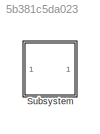
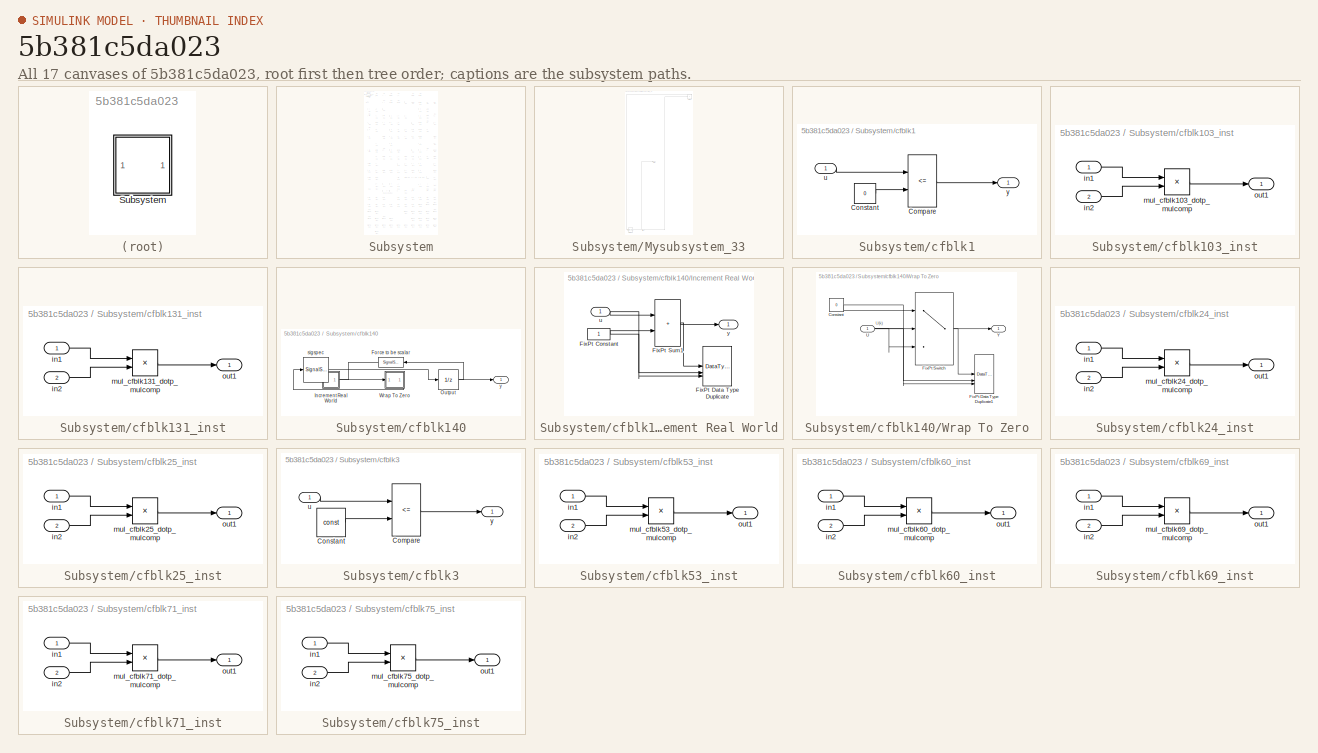
[diagram: thumbnail index - all 17 canvases of the model, root first then tree order]
MODEL slx_5b381c5da023
KIND model
CONFIG AbsTol = auto
CONFIG EnableMultiTasking = off
CONFIG FixedStep = auto
CONFIG MaxStep = auto
CONFIG MinStep = auto
CONFIG RelTol = 1e-3
CONFIG SampleTimeConstraint = Unconstrained
CONFIG SolverName = VariableStepAuto
CONFIG StartTime = 0.0
CONFIG StopTime = 10.0
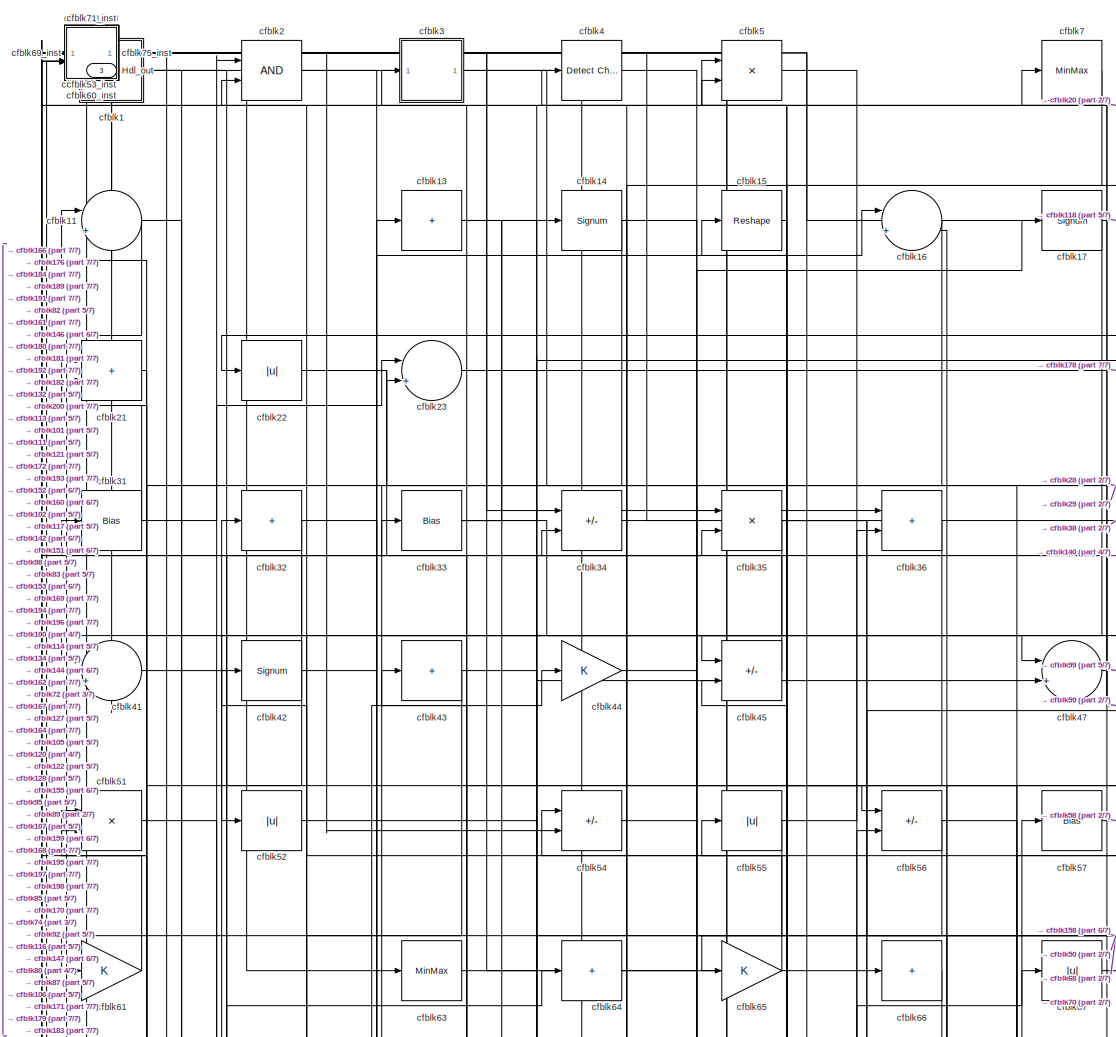
[diagram: Subsystem - part 1/7, top center region]
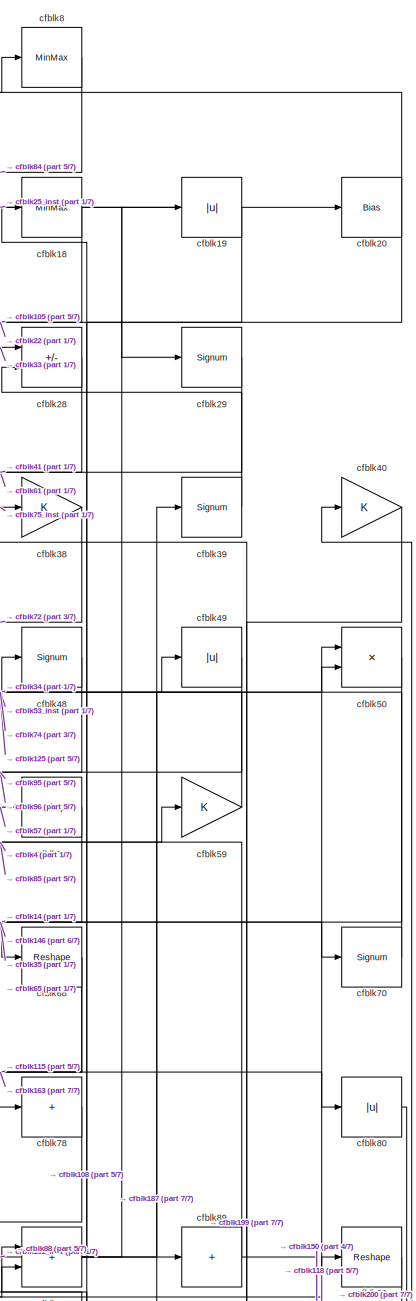
[diagram: Subsystem - part 2/7, top right region]
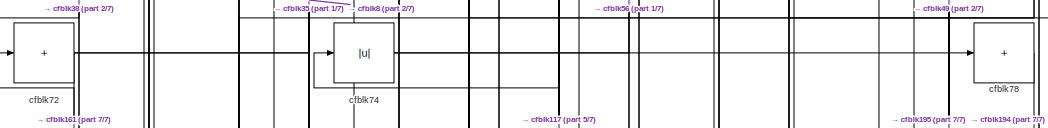
[diagram: Subsystem - part 3/7, central region]
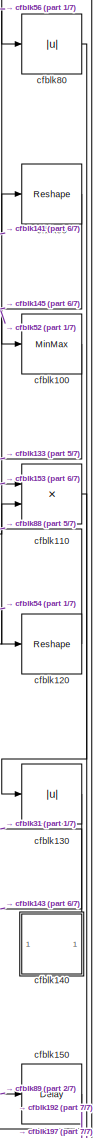
[diagram: Subsystem - part 4/7, middle right region]
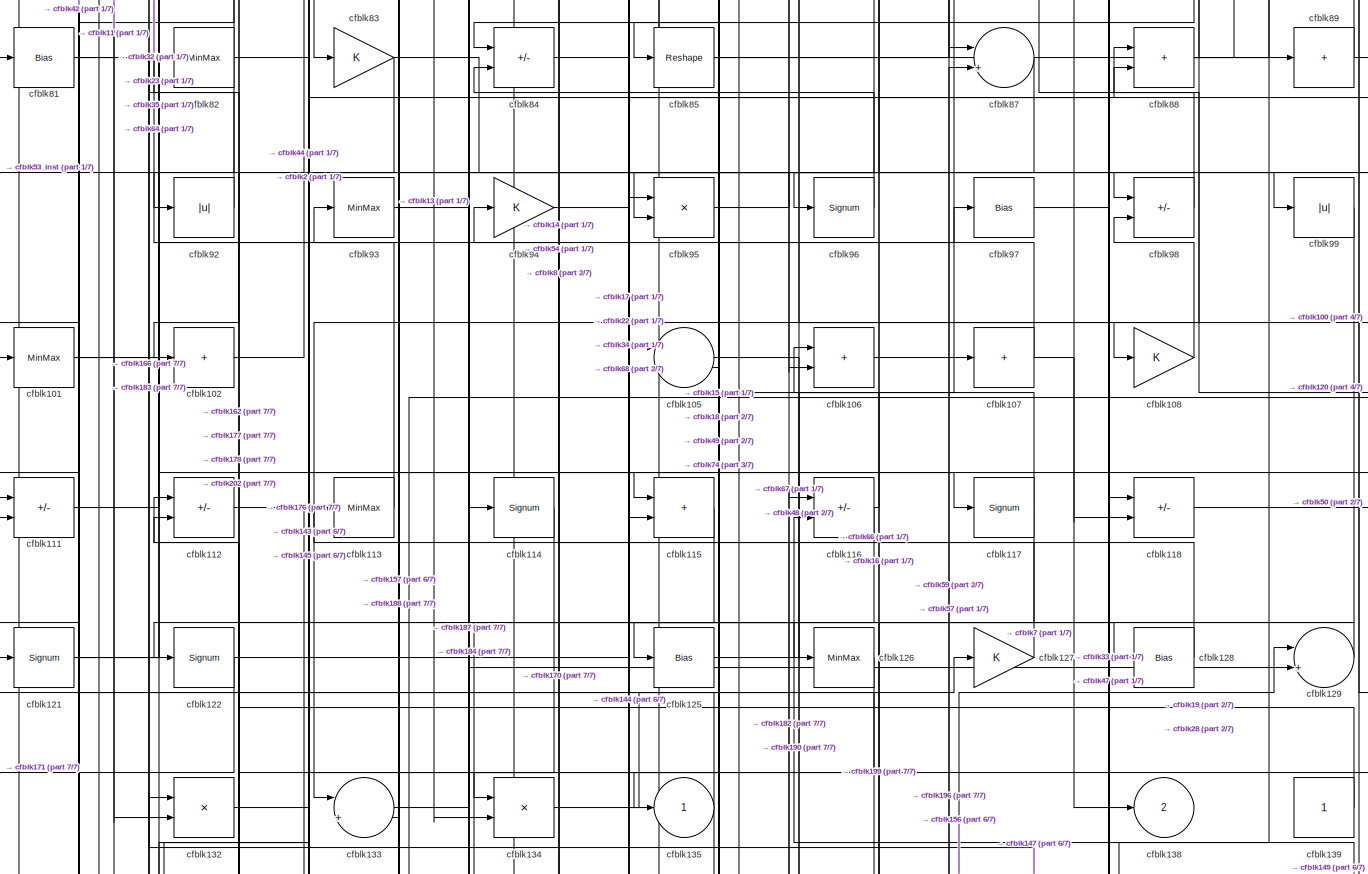
[diagram: Subsystem - part 5/7, full width, middle band]
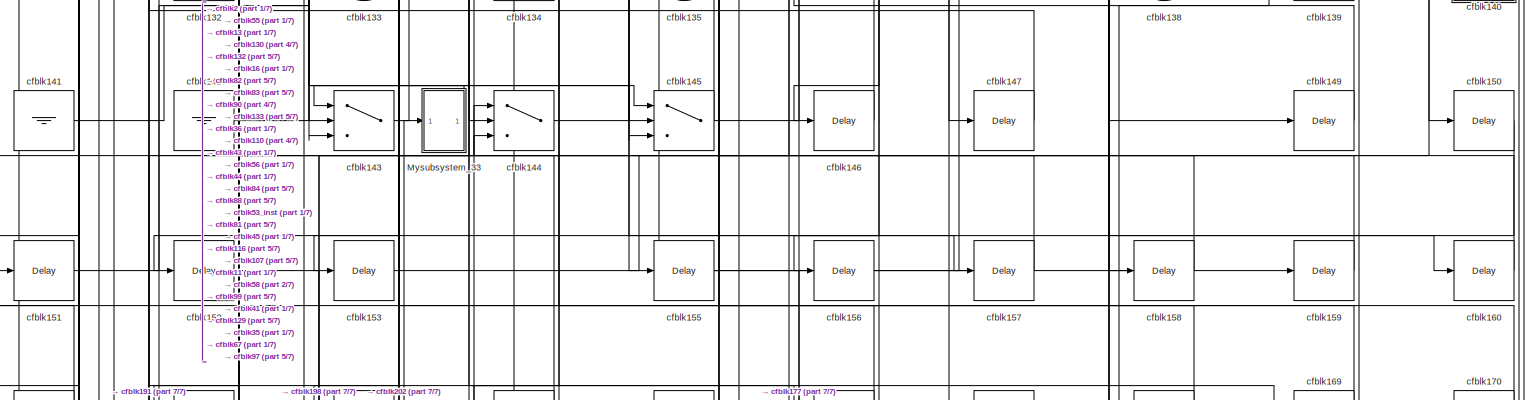
[diagram: Subsystem - part 6/7, full width, bottom band]
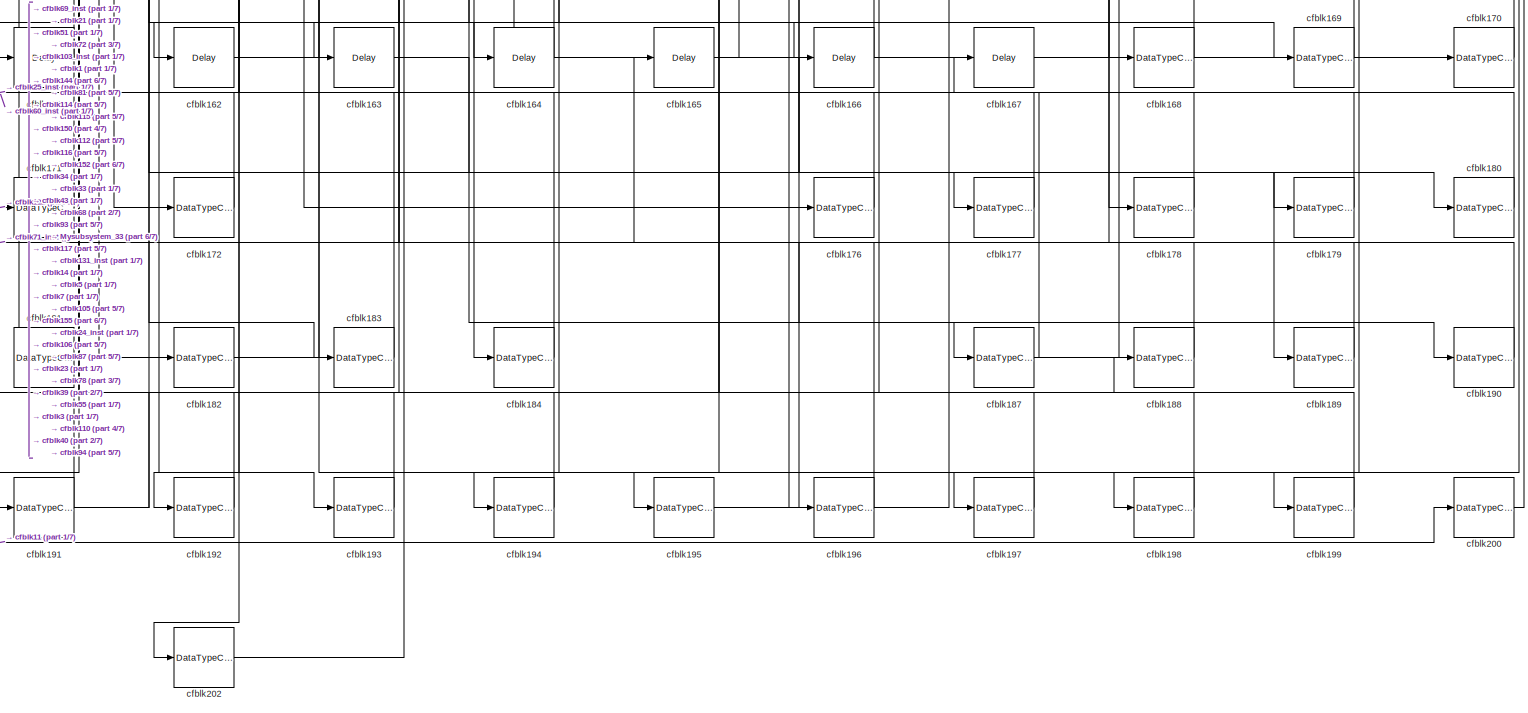
[diagram: Subsystem - part 7/7, full width, bottom band]
BLOCK [SubSystem] Subsystem
BLOCK [Outport] Subsystem/Hdl_out
  OutDataTypeStr = uint8
  Port = 3
BLOCK [SubSystem] Subsystem/Mysubsystem_33
BLOCK [Inport] Subsystem/Mysubsystem_33/In1
  OutDataTypeStr = uint8
  PortDimensions = 1
BLOCK [Outport] Subsystem/Mysubsystem_33/Out1
BLOCK [DataTypeConversion] Subsystem/Mysubsystem_33/cfblk201
  OutDataTypeStr = uint8
  RndMeth = Floor
  SaturateOnIntegerOverflow = off
BLOCK [Sum] Subsystem/Mysubsystem_33/cfblk86
  IconShape = rectangular
  Inputs = +
BLOCK [SubSystem] Subsystem/cfblk1
BLOCK [RelationalOperator] Subsystem/cfblk1/Compare
  Operator = <=
  OutDataTypeStr = fixdt(0, 8)
BLOCK [Constant] Subsystem/cfblk1/Constant
  DisableCoverage = on
  OutDataTypeStr = Inherit: Inherit via back propagation
  PreserveConstantTs = on
  SampleTime = -1
  Value = 0
BLOCK [Inport] Subsystem/cfblk1/u
  OutDataTypeStr = uint8
  SampleTime = 1
BLOCK [Outport] Subsystem/cfblk1/y
  SampleTime = 1
BLOCK [MinMax] Subsystem/cfblk100
  OutDataTypeStr = uint8
BLOCK [MinMax] Subsystem/cfblk101
  OutDataTypeStr = uint8
BLOCK [Sum] Subsystem/cfblk102
  IconShape = rectangular
  Inputs = +
  OutDataTypeStr = uint8
BLOCK [SubSystem] Subsystem/cfblk103_inst
BLOCK [Inport] Subsystem/cfblk103_inst/in1
  OutDataTypeStr = uint8
  SampleTime = 1
BLOCK [Inport] Subsystem/cfblk103_inst/in2
  OutDataTypeStr = uint8
  Port = 2
  SampleTime = 1
BLOCK [Product] Subsystem/cfblk103_inst/mul_cfblk103_dotp_mulcomp
  Inputs = **
  OutDataTypeStr = uint8
  SampleTime = 1
BLOCK [Outport] Subsystem/cfblk103_inst/out1
  OutDataTypeStr = uint8
  SampleTime = 1
BLOCK [Sum] Subsystem/cfblk105
  Inputs = |++
  OutDataTypeStr = uint8
BLOCK [Sum] Subsystem/cfblk106
  IconShape = rectangular
  OutDataTypeStr = uint8
BLOCK [Sum] Subsystem/cfblk107
  IconShape = rectangular
  Inputs = +
  OutDataTypeStr = uint8
BLOCK [Gain] Subsystem/cfblk108
  OutDataTypeStr = uint8
BLOCK [Sum] Subsystem/cfblk11
  Inputs = |++
  OutDataTypeStr = uint8
BLOCK [Product] Subsystem/cfblk110
  Inputs = */
  OutDataTypeStr = uint8
  RndMeth = Zero
  SaturateOnIntegerOverflow = on
BLOCK [Sum] Subsystem/cfblk111
  IconShape = rectangular
  Inputs = +-
  OutDataTypeStr = uint8
BLOCK [Sum] Subsystem/cfblk112
  IconShape = rectangular
  Inputs = +-
  OutDataTypeStr = uint8
BLOCK [MinMax] Subsystem/cfblk113
  OutDataTypeStr = uint8
BLOCK [Signum] Subsystem/cfblk114
BLOCK [Sum] Subsystem/cfblk115
  IconShape = rectangular
  OutDataTypeStr = uint8
BLOCK [Sum] Subsystem/cfblk116
  IconShape = rectangular
  Inputs = +-
  OutDataTypeStr = uint8
BLOCK [Signum] Subsystem/cfblk117
BLOCK [Sum] Subsystem/cfblk118
  IconShape = rectangular
  Inputs = +-
  OutDataTypeStr = uint8
BLOCK [Reshape] Subsystem/cfblk120
BLOCK [Signum] Subsystem/cfblk121
BLOCK [Signum] Subsystem/cfblk122
BLOCK [Bias] Subsystem/cfblk125
  Bias = 0.0
  SaturateOnIntegerOverflow = off
BLOCK [MinMax] Subsystem/cfblk126
  OutDataTypeStr = uint8
BLOCK [Gain] Subsystem/cfblk127
  OutDataTypeStr = uint8
BLOCK [Bias] Subsystem/cfblk128
  Bias = 0.0
  SaturateOnIntegerOverflow = off
BLOCK [Sum] Subsystem/cfblk129
  Inputs = |++
  OutDataTypeStr = uint8
BLOCK [Sum] Subsystem/cfblk13
  IconShape = rectangular
  Inputs = +
  OutDataTypeStr = uint8
BLOCK [Abs] Subsystem/cfblk130
  OutDataTypeStr = uint8
  SaturateOnIntegerOverflow = off
BLOCK [SubSystem] Subsystem/cfblk131_inst
BLOCK [Inport] Subsystem/cfblk131_inst/in1
  OutDataTypeStr = uint8
  SampleTime = 1
BLOCK [Inport] Subsystem/cfblk131_inst/in2
  OutDataTypeStr = uint8
  Port = 2
  SampleTime = 1
BLOCK [Product] Subsystem/cfblk131_inst/mul_cfblk131_dotp_mulcomp
  Inputs = **
  OutDataTypeStr = uint8
  SampleTime = 1
BLOCK [Outport] Subsystem/cfblk131_inst/out1
  OutDataTypeStr = uint8
  SampleTime = 1
BLOCK [Product] Subsystem/cfblk132
  Inputs = */
  OutDataTypeStr = uint8
  RndMeth = Zero
  SaturateOnIntegerOverflow = on
BLOCK [Sum] Subsystem/cfblk133
  Inputs = |++
  OutDataTypeStr = uint8
BLOCK [Product] Subsystem/cfblk134
  Inputs = */
  OutDataTypeStr = uint8
  RndMeth = Zero
  SaturateOnIntegerOverflow = on
BLOCK [Outport] Subsystem/cfblk135
  OutDataTypeStr = uint8
  SampleTime = 1
  VectorParamsAs1DForOutWhenUnconnected = off
BLOCK [Outport] Subsystem/cfblk138
  OutDataTypeStr = uint8
  Port = 2
  SampleTime = 1
  VectorParamsAs1DForOutWhenUnconnected = off
BLOCK [Constant] Subsystem/cfblk139
  OutDataTypeStr = uint8
  SampleTime = -1
BLOCK [Signum] Subsystem/cfblk14
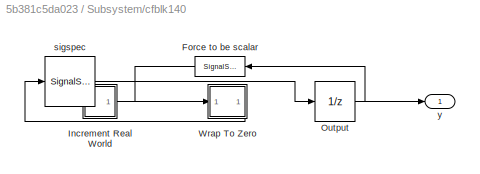
BLOCK [SubSystem] Subsystem/cfblk140
BLOCK [SignalSpecification] Subsystem/cfblk140/Force to be scalar
  Dimensions = 1
  DisableCoverage = on
BLOCK [SubSystem] Subsystem/cfblk140/Increment Real World
BLOCK [Constant] Subsystem/cfblk140/Increment Real World/FixPt Constant
  DisableCoverage = on
  OutDataTypeStr = Inherit: Inherit via back propagation
  SampleTime = -1
BLOCK [DataTypeDuplicate] Subsystem/cfblk140/Increment Real World/FixPt Data Type Duplicate
  DisableCoverage = on
  NumInputPorts = 3
BLOCK [Sum] Subsystem/cfblk140/Increment Real World/FixPt Sum1
  IconShape = rectangular
  InputSameDT = on
  LockScale = on
  OutDataTypeStr = Inherit: Inherit via back propagation
BLOCK [Inport] Subsystem/cfblk140/Increment Real World/u
  OutDataTypeStr = uint8
  SampleTime = 1
BLOCK [Outport] Subsystem/cfblk140/Increment Real World/y
  SampleTime = 1
BLOCK [UnitDelay] Subsystem/cfblk140/Output
  HasFrameUpgradeWarning = on
  InitialCondition = 0.0
  SampleTime = tsamp
BLOCK [SubSystem] Subsystem/cfblk140/Wrap To Zero
BLOCK [Constant] Subsystem/cfblk140/Wrap To Zero/Constant
  DisableCoverage = on
  OutDataTypeStr = Inherit: Inherit via back propagation
  SampleTime = -1
  Value = 0
BLOCK [DataTypeDuplicate] Subsystem/cfblk140/Wrap To Zero/FixPt Data Type Duplicate1
  DisableCoverage = on
  NumInputPorts = 3
BLOCK [Switch] Subsystem/cfblk140/Wrap To Zero/FixPt Switch
  Criteria = u2 > Threshold
  InputSameDT = off
  OutDataTypeStr = Inherit: Inherit via back propagation
  SaturateOnIntegerOverflow = off
  Threshold = Threshold
  ZeroCross = off
BLOCK [Inport] Subsystem/cfblk140/Wrap To Zero/U
  OutDataTypeStr = uint8
  SampleTime = 1
BLOCK [Outport] Subsystem/cfblk140/Wrap To Zero/Y
  SampleTime = 1
BLOCK [SignalSpecification] Subsystem/cfblk140/sigspec
  Dimensions = 1
  OutDataTypeStr = uint8
BLOCK [Outport] Subsystem/cfblk140/y
  SampleTime = 1
BLOCK [Ground] Subsystem/cfblk141
BLOCK [Ground] Subsystem/cfblk142
BLOCK [Switch] Subsystem/cfblk143
  InputSameDT = off
  OutDataTypeStr = uint8
  SaturateOnIntegerOverflow = off
BLOCK [Switch] Subsystem/cfblk144
  InputSameDT = off
  OutDataTypeStr = uint8
  SaturateOnIntegerOverflow = off
BLOCK [Switch] Subsystem/cfblk145
  InputSameDT = off
  OutDataTypeStr = uint8
  SaturateOnIntegerOverflow = off
BLOCK [Delay] Subsystem/cfblk146
  InputPortMap = u0
  SampleTime = 1
BLOCK [Delay] Subsystem/cfblk147
  InputPortMap = u0
  SampleTime = 1
BLOCK [Delay] Subsystem/cfblk149
  InputPortMap = u0
  SampleTime = 1
BLOCK [Reshape] Subsystem/cfblk15
BLOCK [Delay] Subsystem/cfblk150
  InputPortMap = u0
  SampleTime = 1
BLOCK [Delay] Subsystem/cfblk151
  InputPortMap = u0
  SampleTime = 1
BLOCK [Delay] Subsystem/cfblk152
  InputPortMap = u0
  SampleTime = 1
BLOCK [Delay] Subsystem/cfblk153
  InputPortMap = u0
  SampleTime = 1
BLOCK [Delay] Subsystem/cfblk155
  InputPortMap = u0
  SampleTime = 1
BLOCK [Delay] Subsystem/cfblk156
  InputPortMap = u0
  SampleTime = 1
BLOCK [Delay] Subsystem/cfblk157
  InputPortMap = u0
  SampleTime = 1
BLOCK [Delay] Subsystem/cfblk158
  InputPortMap = u0
  SampleTime = 1
BLOCK [Delay] Subsystem/cfblk159
  InputPortMap = u0
  SampleTime = 1
BLOCK [Sum] Subsystem/cfblk16
  Inputs = |++
  OutDataTypeStr = uint8
BLOCK [Delay] Subsystem/cfblk160
  InputPortMap = u0
  SampleTime = 1
BLOCK [Delay] Subsystem/cfblk161
  InputPortMap = u0
  SampleTime = 1
BLOCK [Delay] Subsystem/cfblk162
  InputPortMap = u0
  SampleTime = 1
BLOCK [Delay] Subsystem/cfblk163
  InputPortMap = u0
  SampleTime = 1
BLOCK [Delay] Subsystem/cfblk164
  InputPortMap = u0
  SampleTime = 1
BLOCK [Delay] Subsystem/cfblk165
  InputPortMap = u0
  SampleTime = 1
BLOCK [Delay] Subsystem/cfblk166
  InputPortMap = u0
  SampleTime = 1
BLOCK [Delay] Subsystem/cfblk167
  InputPortMap = u0
  SampleTime = 1
BLOCK [DataTypeConversion] Subsystem/cfblk168
  OutDataTypeStr = uint8
  RndMeth = Floor
  SaturateOnIntegerOverflow = off
BLOCK [DataTypeConversion] Subsystem/cfblk169
  OutDataTypeStr = uint8
  RndMeth = Floor
  SaturateOnIntegerOverflow = off
BLOCK [Signum] Subsystem/cfblk17
BLOCK [DataTypeConversion] Subsystem/cfblk170
  OutDataTypeStr = uint8
  RndMeth = Floor
  SaturateOnIntegerOverflow = off
BLOCK [DataTypeConversion] Subsystem/cfblk171
  OutDataTypeStr = uint8
  RndMeth = Floor
  SaturateOnIntegerOverflow = off
BLOCK [DataTypeConversion] Subsystem/cfblk172
  OutDataTypeStr = uint8
  RndMeth = Floor
  SaturateOnIntegerOverflow = off
BLOCK [DataTypeConversion] Subsystem/cfblk176
  OutDataTypeStr = uint8
  RndMeth = Floor
  SaturateOnIntegerOverflow = off
BLOCK [DataTypeConversion] Subsystem/cfblk177
  OutDataTypeStr = uint8
  RndMeth = Floor
  SaturateOnIntegerOverflow = off
BLOCK [DataTypeConversion] Subsystem/cfblk178
  OutDataTypeStr = uint8
  RndMeth = Floor
  SaturateOnIntegerOverflow = off
BLOCK [DataTypeConversion] Subsystem/cfblk179
  OutDataTypeStr = uint8
  RndMeth = Floor
  SaturateOnIntegerOverflow = off
BLOCK [MinMax] Subsystem/cfblk18
  OutDataTypeStr = uint8
BLOCK [DataTypeConversion] Subsystem/cfblk180
  OutDataTypeStr = uint8
  RndMeth = Floor
  SaturateOnIntegerOverflow = off
BLOCK [DataTypeConversion] Subsystem/cfblk181
  OutDataTypeStr = uint8
  RndMeth = Floor
  SaturateOnIntegerOverflow = off
BLOCK [DataTypeConversion] Subsystem/cfblk182
  OutDataTypeStr = uint8
  RndMeth = Floor
  SaturateOnIntegerOverflow = off
BLOCK [DataTypeConversion] Subsystem/cfblk183
  OutDataTypeStr = uint8
  RndMeth = Floor
  SaturateOnIntegerOverflow = off
BLOCK [DataTypeConversion] Subsystem/cfblk184
  OutDataTypeStr = uint8
  RndMeth = Floor
  SaturateOnIntegerOverflow = off
BLOCK [DataTypeConversion] Subsystem/cfblk187
  OutDataTypeStr = uint8
  RndMeth = Floor
  SaturateOnIntegerOverflow = off
BLOCK [DataTypeConversion] Subsystem/cfblk188
  OutDataTypeStr = uint8
  RndMeth = Floor
  SaturateOnIntegerOverflow = off
BLOCK [DataTypeConversion] Subsystem/cfblk189
  OutDataTypeStr = uint8
  RndMeth = Floor
  SaturateOnIntegerOverflow = off
BLOCK [Abs] Subsystem/cfblk19
  OutDataTypeStr = uint8
  SaturateOnIntegerOverflow = off
BLOCK [DataTypeConversion] Subsystem/cfblk190
  OutDataTypeStr = uint8
  RndMeth = Floor
  SaturateOnIntegerOverflow = off
BLOCK [DataTypeConversion] Subsystem/cfblk191
  OutDataTypeStr = uint8
  RndMeth = Floor
  SaturateOnIntegerOverflow = off
BLOCK [DataTypeConversion] Subsystem/cfblk192
  OutDataTypeStr = uint8
  RndMeth = Floor
  SaturateOnIntegerOverflow = off
BLOCK [DataTypeConversion] Subsystem/cfblk193
  OutDataTypeStr = uint8
  RndMeth = Floor
  SaturateOnIntegerOverflow = off
BLOCK [DataTypeConversion] Subsystem/cfblk194
  OutDataTypeStr = uint8
  RndMeth = Floor
  SaturateOnIntegerOverflow = off
BLOCK [DataTypeConversion] Subsystem/cfblk195
  OutDataTypeStr = uint8
  RndMeth = Floor
  SaturateOnIntegerOverflow = off
BLOCK [DataTypeConversion] Subsystem/cfblk196
  OutDataTypeStr = uint8
  RndMeth = Floor
  SaturateOnIntegerOverflow = off
BLOCK [DataTypeConversion] Subsystem/cfblk197
  OutDataTypeStr = uint8
  RndMeth = Floor
  SaturateOnIntegerOverflow = off
BLOCK [DataTypeConversion] Subsystem/cfblk198
  OutDataTypeStr = uint8
  RndMeth = Floor
  SaturateOnIntegerOverflow = off
BLOCK [DataTypeConversion] Subsystem/cfblk199
  OutDataTypeStr = uint8
  RndMeth = Floor
  SaturateOnIntegerOverflow = off
BLOCK [Logic] Subsystem/cfblk2
  AllPortsSameDT = off
  OutDataTypeStr = boolean
BLOCK [Bias] Subsystem/cfblk20
  Bias = 0.0
  SaturateOnIntegerOverflow = off
BLOCK [DataTypeConversion] Subsystem/cfblk200
  OutDataTypeStr = uint8
  RndMeth = Floor
  SaturateOnIntegerOverflow = off
BLOCK [DataTypeConversion] Subsystem/cfblk202
  OutDataTypeStr = uint8
  RndMeth = Floor
  SaturateOnIntegerOverflow = off
BLOCK [Sum] Subsystem/cfblk21
  IconShape = rectangular
  OutDataTypeStr = uint8
BLOCK [Abs] Subsystem/cfblk22
  OutDataTypeStr = uint8
  SaturateOnIntegerOverflow = off
BLOCK [Sum] Subsystem/cfblk23
  Inputs = |++
  OutDataTypeStr = uint8
BLOCK [SubSystem] Subsystem/cfblk24_inst
BLOCK [Inport] Subsystem/cfblk24_inst/in1
  OutDataTypeStr = uint8
  SampleTime = 1
BLOCK [Inport] Subsystem/cfblk24_inst/in2
  OutDataTypeStr = uint8
  Port = 2
  SampleTime = 1
BLOCK [Product] Subsystem/cfblk24_inst/mul_cfblk24_dotp_mulcomp
  Inputs = **
  OutDataTypeStr = uint8
  SampleTime = 1
BLOCK [Outport] Subsystem/cfblk24_inst/out1
  OutDataTypeStr = uint8
  SampleTime = 1
BLOCK [SubSystem] Subsystem/cfblk25_inst
BLOCK [Inport] Subsystem/cfblk25_inst/in1
  OutDataTypeStr = uint8
  SampleTime = 1
BLOCK [Inport] Subsystem/cfblk25_inst/in2
  OutDataTypeStr = uint8
  Port = 2
  SampleTime = 1
BLOCK [Product] Subsystem/cfblk25_inst/mul_cfblk25_dotp_mulcomp
  Inputs = **
  OutDataTypeStr = uint8
  SampleTime = 1
BLOCK [Outport] Subsystem/cfblk25_inst/out1
  OutDataTypeStr = uint8
  SampleTime = 1
BLOCK [Sum] Subsystem/cfblk28
  IconShape = rectangular
  Inputs = +-
  OutDataTypeStr = uint8
BLOCK [Signum] Subsystem/cfblk29
BLOCK [SubSystem] Subsystem/cfblk3
BLOCK [RelationalOperator] Subsystem/cfblk3/Compare
  Operator = <=
  OutDataTypeStr = fixdt(0, 8)
BLOCK [Constant] Subsystem/cfblk3/Constant
  DisableCoverage = on
  OutDataTypeStr = Inherit: Inherit via back propagation
  SampleTime = -1
  Value = const
BLOCK [Inport] Subsystem/cfblk3/u
  OutDataTypeStr = uint8
  SampleTime = 1
BLOCK [Outport] Subsystem/cfblk3/y
  SampleTime = 1
BLOCK [Bias] Subsystem/cfblk31
  Bias = 0.0
  SaturateOnIntegerOverflow = off
BLOCK [Sum] Subsystem/cfblk32
  IconShape = rectangular
  Inputs = +
  OutDataTypeStr = uint8
BLOCK [Bias] Subsystem/cfblk33
  Bias = 0.0
  SaturateOnIntegerOverflow = off
BLOCK [Sum] Subsystem/cfblk34
  IconShape = rectangular
  Inputs = +-
  OutDataTypeStr = uint8
BLOCK [Product] Subsystem/cfblk35
  Inputs = */
  OutDataTypeStr = uint8
  RndMeth = Zero
  SaturateOnIntegerOverflow = on
BLOCK [Sum] Subsystem/cfblk36
  IconShape = rectangular
  OutDataTypeStr = uint8
BLOCK [Gain] Subsystem/cfblk38
  OutDataTypeStr = uint8
BLOCK [Signum] Subsystem/cfblk39
BLOCK [Reference] Subsystem/cfblk4  REF=simulink/Logic and Bit
Operations/Detect
Change
  LibrarySourceBlock = hdlsllib/Logic and Bit\nOperations/Detect\nChange
  SourceBlock = simulink/Logic and Bit\nOperations/Detect\nChange
  SourceType = Detect Change
BLOCK [Gain] Subsystem/cfblk40
  OutDataTypeStr = uint8
BLOCK [Sum] Subsystem/cfblk41
  Inputs = |++
  OutDataTypeStr = uint8
BLOCK [Signum] Subsystem/cfblk42
BLOCK [Sum] Subsystem/cfblk43
  IconShape = rectangular
  Inputs = +
  OutDataTypeStr = uint8
BLOCK [Gain] Subsystem/cfblk44
  OutDataTypeStr = uint8
BLOCK [Sum] Subsystem/cfblk45
  IconShape = rectangular
  Inputs = +-
  OutDataTypeStr = uint8
BLOCK [Sum] Subsystem/cfblk47
  Inputs = |++
  OutDataTypeStr = uint8
BLOCK [Signum] Subsystem/cfblk48
BLOCK [Abs] Subsystem/cfblk49
  OutDataTypeStr = uint8
  SaturateOnIntegerOverflow = off
BLOCK [Product] Subsystem/cfblk5
  Inputs = */
  OutDataTypeStr = uint8
  RndMeth = Zero
  SaturateOnIntegerOverflow = on
BLOCK [Product] Subsystem/cfblk50
  Inputs = */
  OutDataTypeStr = uint8
  RndMeth = Zero
  SaturateOnIntegerOverflow = on
BLOCK [Product] Subsystem/cfblk51
  Inputs = */
  OutDataTypeStr = uint8
  RndMeth = Zero
  SaturateOnIntegerOverflow = on
BLOCK [Abs] Subsystem/cfblk52
  OutDataTypeStr = uint8
  SaturateOnIntegerOverflow = off
BLOCK [SubSystem] Subsystem/cfblk53_inst
BLOCK [Inport] Subsystem/cfblk53_inst/in1
  OutDataTypeStr = uint8
  SampleTime = 1
BLOCK [Inport] Subsystem/cfblk53_inst/in2
  OutDataTypeStr = uint8
  Port = 2
  SampleTime = 1
BLOCK [Product] Subsystem/cfblk53_inst/mul_cfblk53_dotp_mulcomp
  Inputs = **
  OutDataTypeStr = uint8
  SampleTime = 1
BLOCK [Outport] Subsystem/cfblk53_inst/out1
  OutDataTypeStr = uint8
  SampleTime = 1
BLOCK [Sum] Subsystem/cfblk54
  IconShape = rectangular
  Inputs = +-
  OutDataTypeStr = uint8
BLOCK [Abs] Subsystem/cfblk55
  OutDataTypeStr = uint8
  SaturateOnIntegerOverflow = off
BLOCK [Sum] Subsystem/cfblk56
  IconShape = rectangular
  Inputs = +-
  OutDataTypeStr = uint8
BLOCK [Bias] Subsystem/cfblk57
  Bias = 0.0
  SaturateOnIntegerOverflow = off
BLOCK [Reshape] Subsystem/cfblk58
BLOCK [Gain] Subsystem/cfblk59
  OutDataTypeStr = uint8
BLOCK [SubSystem] Subsystem/cfblk60_inst
BLOCK [Inport] Subsystem/cfblk60_inst/in1
  OutDataTypeStr = uint8
  SampleTime = 1
BLOCK [Inport] Subsystem/cfblk60_inst/in2
  OutDataTypeStr = uint8
  Port = 2
  SampleTime = 1
BLOCK [Product] Subsystem/cfblk60_inst/mul_cfblk60_dotp_mulcomp
  Inputs = **
  OutDataTypeStr = uint8
  SampleTime = 1
BLOCK [Outport] Subsystem/cfblk60_inst/out1
  OutDataTypeStr = uint8
  SampleTime = 1
BLOCK [Gain] Subsystem/cfblk61
  OutDataTypeStr = uint8
BLOCK [MinMax] Subsystem/cfblk63
  OutDataTypeStr = uint8
BLOCK [Sum] Subsystem/cfblk64
  IconShape = rectangular
  Inputs = +
  OutDataTypeStr = uint8
BLOCK [Gain] Subsystem/cfblk65
  OutDataTypeStr = uint8
BLOCK [Sum] Subsystem/cfblk66
  IconShape = rectangular
  Inputs = +
  OutDataTypeStr = uint8
BLOCK [Abs] Subsystem/cfblk67
  OutDataTypeStr = uint8
  SaturateOnIntegerOverflow = off
BLOCK [Reshape] Subsystem/cfblk68
BLOCK [SubSystem] Subsystem/cfblk69_inst
BLOCK [Inport] Subsystem/cfblk69_inst/in1
  OutDataTypeStr = uint8
  SampleTime = 1
BLOCK [Inport] Subsystem/cfblk69_inst/in2
  OutDataTypeStr = uint8
  Port = 2
  SampleTime = 1
BLOCK [Product] Subsystem/cfblk69_inst/mul_cfblk69_dotp_mulcomp
  Inputs = **
  OutDataTypeStr = uint8
  SampleTime = 1
BLOCK [Outport] Subsystem/cfblk69_inst/out1
  OutDataTypeStr = uint8
  SampleTime = 1
BLOCK [MinMax] Subsystem/cfblk7
  OutDataTypeStr = uint8
BLOCK [Signum] Subsystem/cfblk70
BLOCK [SubSystem] Subsystem/cfblk71_inst
BLOCK [Inport] Subsystem/cfblk71_inst/in1
  OutDataTypeStr = uint8
  SampleTime = 1
BLOCK [Inport] Subsystem/cfblk71_inst/in2
  OutDataTypeStr = uint8
  Port = 2
  SampleTime = 1
BLOCK [Product] Subsystem/cfblk71_inst/mul_cfblk71_dotp_mulcomp
  Inputs = **
  OutDataTypeStr = uint8
  SampleTime = 1
BLOCK [Outport] Subsystem/cfblk71_inst/out1
  OutDataTypeStr = uint8
  SampleTime = 1
BLOCK [Sum] Subsystem/cfblk72
  IconShape = rectangular
  Inputs = +
  OutDataTypeStr = uint8
BLOCK [Abs] Subsystem/cfblk74
  OutDataTypeStr = uint8
  SaturateOnIntegerOverflow = off
BLOCK [SubSystem] Subsystem/cfblk75_inst
BLOCK [Inport] Subsystem/cfblk75_inst/in1
  OutDataTypeStr = uint8
  SampleTime = 1
BLOCK [Inport] Subsystem/cfblk75_inst/in2
  OutDataTypeStr = uint8
  Port = 2
  SampleTime = 1
BLOCK [Product] Subsystem/cfblk75_inst/mul_cfblk75_dotp_mulcomp
  Inputs = **
  OutDataTypeStr = uint8
  SampleTime = 1
BLOCK [Outport] Subsystem/cfblk75_inst/out1
  OutDataTypeStr = uint8
  SampleTime = 1
BLOCK [Sum] Subsystem/cfblk78
  IconShape = rectangular
  Inputs = +
  OutDataTypeStr = uint8
BLOCK [MinMax] Subsystem/cfblk8
  OutDataTypeStr = uint8
BLOCK [Abs] Subsystem/cfblk80
  OutDataTypeStr = uint8
  SaturateOnIntegerOverflow = off
BLOCK [Bias] Subsystem/cfblk81
  Bias = 0.0
  SaturateOnIntegerOverflow = off
BLOCK [MinMax] Subsystem/cfblk82
  OutDataTypeStr = uint8
BLOCK [Gain] Subsystem/cfblk83
  OutDataTypeStr = uint8
BLOCK [Sum] Subsystem/cfblk84
  IconShape = rectangular
  Inputs = +-
  OutDataTypeStr = uint8
BLOCK [Reshape] Subsystem/cfblk85
BLOCK [Sum] Subsystem/cfblk87
  Inputs = |++
  OutDataTypeStr = uint8
BLOCK [Sum] Subsystem/cfblk88
  IconShape = rectangular
  OutDataTypeStr = uint8
BLOCK [Sum] Subsystem/cfblk89
  IconShape = rectangular
  Inputs = +
  OutDataTypeStr = uint8
BLOCK [Reshape] Subsystem/cfblk90
BLOCK [Abs] Subsystem/cfblk92
  OutDataTypeStr = uint8
  SaturateOnIntegerOverflow = off
BLOCK [MinMax] Subsystem/cfblk93
  OutDataTypeStr = uint8
BLOCK [Gain] Subsystem/cfblk94
  OutDataTypeStr = uint8
BLOCK [Product] Subsystem/cfblk95
  Inputs = */
  OutDataTypeStr = uint8
  RndMeth = Zero
  SaturateOnIntegerOverflow = on
BLOCK [Signum] Subsystem/cfblk96
BLOCK [Bias] Subsystem/cfblk97
  Bias = 0.0
  SaturateOnIntegerOverflow = off
BLOCK [Sum] Subsystem/cfblk98
  IconShape = rectangular
  Inputs = +-
  OutDataTypeStr = uint8
BLOCK [Abs] Subsystem/cfblk99
  OutDataTypeStr = uint8
  SaturateOnIntegerOverflow = off
ANNOTATION Subsystem/cfblk140/Wrap To Zero: U(k)
LINE Subsystem/Mysubsystem_33/In1:1 -> Subsystem/Mysubsystem_33/cfblk86:1
LINE Subsystem/Mysubsystem_33/cfblk201:1 -> Subsystem/Mysubsystem_33/Out1:1
LINE Subsystem/Mysubsystem_33/cfblk86:1 -> Subsystem/Mysubsystem_33/cfblk201:1
LINE Subsystem/Mysubsystem_33:1 -> Subsystem/cfblk143:1
LINE Subsystem/cfblk100:1 -> Subsystem/cfblk133:1
NET Subsystem/cfblk101:1 -> Subsystem/cfblk115:1, Subsystem/cfblk35:2
LINE Subsystem/cfblk102:1 -> Subsystem/cfblk44:1
LINE Subsystem/cfblk103_inst/in1:1 -> Subsystem/cfblk103_inst/mul_cfblk103_dotp_mulcomp:1
LINE Subsystem/cfblk103_inst/in2:1 -> Subsystem/cfblk103_inst/mul_cfblk103_dotp_mulcomp:2
LINE Subsystem/cfblk103_inst/mul_cfblk103_dotp_mulcomp:1 -> Subsystem/cfblk103_inst/out1:1
LINE Subsystem/cfblk103_inst:1 -> Subsystem/cfblk182:1
LINE Subsystem/cfblk105:1 -> Subsystem/cfblk190:1
LINE Subsystem/cfblk106:1 -> Subsystem/cfblk57:1
NET Subsystem/cfblk107:1 -> Subsystem/cfblk138:1, Subsystem/cfblk15:1
LINE Subsystem/cfblk108:1 -> Subsystem/cfblk98:2
LINE Subsystem/cfblk110:1 -> Subsystem/cfblk197:1
LINE Subsystem/cfblk111:1 -> Subsystem/cfblk64:1
LINE Subsystem/cfblk112:1 -> Subsystem/cfblk176:1
LINE Subsystem/cfblk113:1 -> Subsystem/cfblk32:1
LINE Subsystem/cfblk114:1 -> Subsystem/cfblk202:1
LINE Subsystem/cfblk115:1 -> Subsystem/cfblk162:1
NET Subsystem/cfblk116:1 -> Subsystem/cfblk125:1, Subsystem/cfblk16:2
NET Subsystem/cfblk117:1 -> Subsystem/cfblk184:1, Subsystem/cfblk74:1
LINE Subsystem/cfblk118:1 -> Subsystem/cfblk50:1
NET Subsystem/cfblk11:1 -> Subsystem/cfblk132:2, Subsystem/cfblk200:1
LINE Subsystem/cfblk120:1 -> Subsystem/cfblk88:1
NET Subsystem/cfblk121:1 -> Subsystem/cfblk23:2, Subsystem/cfblk97:1
NET Subsystem/cfblk122:1 -> Subsystem/cfblk171:1, Subsystem/cfblk17:1
LINE Subsystem/cfblk125:1 -> Subsystem/cfblk48:1
LINE Subsystem/cfblk126:1 -> Subsystem/cfblk134:1
LINE Subsystem/cfblk127:1 -> Subsystem/cfblk54:1
LINE Subsystem/cfblk128:1 -> Subsystem/cfblk113:1
LINE Subsystem/cfblk129:1 -> Subsystem/cfblk122:1
LINE Subsystem/cfblk130:1 -> Subsystem/cfblk143:2
LINE Subsystem/cfblk131_inst/in1:1 -> Subsystem/cfblk131_inst/mul_cfblk131_dotp_mulcomp:1
LINE Subsystem/cfblk131_inst/in2:1 -> Subsystem/cfblk131_inst/mul_cfblk131_dotp_mulcomp:2
LINE Subsystem/cfblk131_inst/mul_cfblk131_dotp_mulcomp:1 -> Subsystem/cfblk131_inst/out1:1
LINE Subsystem/cfblk131_inst:1 -> Subsystem/cfblk89:1
LINE Subsystem/cfblk132:1 -> Subsystem/cfblk145:1
LINE Subsystem/cfblk133:1 -> Subsystem/cfblk129:2
LINE Subsystem/cfblk134:1 -> Subsystem/cfblk127:1
LINE Subsystem/cfblk139:1 -> Subsystem/cfblk82:1
NET Subsystem/cfblk13:1 -> Subsystem/cfblk114:1, Subsystem/cfblk134:2
LINE Subsystem/cfblk140:1 -> Subsystem/cfblk31:1
LINE Subsystem/cfblk141:1 -> Subsystem/cfblk90:1
LINE Subsystem/cfblk142:1 -> Subsystem/cfblk13:1
LINE Subsystem/cfblk143:1 -> Subsystem/cfblk110:2
LINE Subsystem/cfblk144:1 -> Subsystem/cfblk88:2
NET Subsystem/cfblk145:1 -> Subsystem/cfblk107:1, Subsystem/cfblk81:1
LINE Subsystem/cfblk146:1 -> Subsystem/cfblk11:1
LINE Subsystem/cfblk147:1 -> Subsystem/cfblk132:1
LINE Subsystem/cfblk149:1 -> Subsystem/cfblk116:2
NET Subsystem/cfblk14:1 -> Subsystem/cfblk164:1, Subsystem/cfblk68:1, Subsystem/cfblk83:1
LINE Subsystem/cfblk150:1 -> Subsystem/cfblk192:1
LINE Subsystem/cfblk151:1 -> Subsystem/cfblk16:1
LINE Subsystem/cfblk152:1 -> Subsystem/cfblk198:1
LINE Subsystem/cfblk153:1 -> Subsystem/cfblk110:1
LINE Subsystem/cfblk155:1 -> Subsystem/cfblk177:1
LINE Subsystem/cfblk156:1 -> Subsystem/cfblk129:1
LINE Subsystem/cfblk157:1 -> Subsystem/cfblk133:2
LINE Subsystem/cfblk158:1 -> Subsystem/cfblk144:1
LINE Subsystem/cfblk159:1 -> Subsystem/cfblk45:2
LINE Subsystem/cfblk15:1 -> Subsystem/cfblk45:1
LINE Subsystem/cfblk160:1 -> Subsystem/cfblk2:2
LINE Subsystem/cfblk161:1 -> Subsystem/cfblk69_inst:2
LINE Subsystem/cfblk162:1 -> Subsystem/cfblk34:1
LINE Subsystem/cfblk163:1 -> Subsystem/cfblk180:1
LINE Subsystem/cfblk164:1 -> Subsystem/cfblk131_inst:2
LINE Subsystem/cfblk165:1 -> Subsystem/cfblk189:1
LINE Subsystem/cfblk166:1 -> Subsystem/cfblk24_inst:2
LINE Subsystem/cfblk167:1 -> Subsystem/cfblk1:1
LINE Subsystem/cfblk168:1 -> Subsystem/cfblk55:1
LINE Subsystem/cfblk169:1 -> Subsystem/cfblk3:1
LINE Subsystem/cfblk16:1 -> Subsystem/cfblk85:1
LINE Subsystem/cfblk170:1 -> Subsystem/cfblk94:1
LINE Subsystem/cfblk171:1 -> Subsystem/cfblk60_inst:1
LINE Subsystem/cfblk172:1 -> Subsystem/cfblk60_inst:2
LINE Subsystem/cfblk176:1 -> Subsystem/cfblk25_inst:2
LINE Subsystem/cfblk177:1 -> Subsystem/cfblk112:1
LINE Subsystem/cfblk178:1 -> Subsystem/cfblk112:2
LINE Subsystem/cfblk179:1 -> Subsystem/cfblk24_inst:1
NET Subsystem/cfblk17:1 -> Subsystem/cfblk118:2, Subsystem/cfblk121:1
LINE Subsystem/cfblk180:1 -> Subsystem/cfblk51:1
LINE Subsystem/cfblk181:1 -> Subsystem/cfblk51:2
LINE Subsystem/cfblk182:1 -> Subsystem/cfblk116:1
LINE Subsystem/cfblk183:1 -> Subsystem/cfblk103_inst:1
LINE Subsystem/cfblk184:1 -> Subsystem/cfblk103_inst:2
NET Subsystem/cfblk187:1 -> Subsystem/cfblk167:1, Subsystem/cfblk39:1
LINE Subsystem/cfblk188:1 -> Subsystem/cfblk93:1
LINE Subsystem/cfblk189:1 -> Subsystem/cfblk71_inst:1
NET Subsystem/cfblk18:1 -> Subsystem/cfblk105:2, Subsystem/cfblk29:1
LINE Subsystem/cfblk190:1 -> Subsystem/cfblk165:1
NET Subsystem/cfblk191:1 -> Subsystem/cfblk144:3, Subsystem/cfblk188:1, Subsystem/cfblk71_inst:2
LINE Subsystem/cfblk192:1 -> Subsystem/cfblk21:1
LINE Subsystem/cfblk193:1 -> Subsystem/cfblk21:2
LINE Subsystem/cfblk194:1 -> Subsystem/cfblk33:1
LINE Subsystem/cfblk195:1 -> Subsystem/cfblk78:1
NET Subsystem/cfblk196:1 -> Subsystem/cfblk43:1, Subsystem/cfblk87:2
LINE Subsystem/cfblk197:1 -> Subsystem/cfblk5:1
LINE Subsystem/cfblk198:1 -> Subsystem/cfblk5:2
LINE Subsystem/cfblk199:1 -> Subsystem/cfblk106:1
LINE Subsystem/cfblk19:1 -> Subsystem/cfblk108:1
NET Subsystem/cfblk1:1 -> Subsystem/cfblk172:1, Subsystem/cfblk193:1
LINE Subsystem/cfblk200:1 -> Subsystem/cfblk40:1
LINE Subsystem/cfblk202:1 -> Subsystem/Mysubsystem_33:1
NET Subsystem/cfblk20:1 -> Subsystem/cfblk131_inst:1, Subsystem/cfblk22:1
LINE Subsystem/cfblk21:1 -> Subsystem/cfblk191:1
NET Subsystem/cfblk22:1 -> Subsystem/cfblk105:1, Subsystem/cfblk87:1
LINE Subsystem/cfblk23:1 -> Subsystem/cfblk178:1
LINE Subsystem/cfblk24_inst/in1:1 -> Subsystem/cfblk24_inst/mul_cfblk24_dotp_mulcomp:1
LINE Subsystem/cfblk24_inst/in2:1 -> Subsystem/cfblk24_inst/mul_cfblk24_dotp_mulcomp:2
LINE Subsystem/cfblk24_inst/mul_cfblk24_dotp_mulcomp:1 -> Subsystem/cfblk24_inst/out1:1
NET Subsystem/cfblk24_inst:1 -> Subsystem/cfblk11:2, Subsystem/cfblk63:1
LINE Subsystem/cfblk25_inst/in1:1 -> Subsystem/cfblk25_inst/mul_cfblk25_dotp_mulcomp:1
LINE Subsystem/cfblk25_inst/in2:1 -> Subsystem/cfblk25_inst/mul_cfblk25_dotp_mulcomp:2
LINE Subsystem/cfblk25_inst/mul_cfblk25_dotp_mulcomp:1 -> Subsystem/cfblk25_inst/out1:1
NET Subsystem/cfblk25_inst:1 -> Subsystem/cfblk20:1, Subsystem/cfblk54:2
LINE Subsystem/cfblk28:1 -> Subsystem/cfblk61:1
LINE Subsystem/cfblk29:1 -> Subsystem/cfblk41:1
LINE Subsystem/cfblk2:1 -> Subsystem/cfblk117:1
NET Subsystem/cfblk31:1 -> Subsystem/cfblk23:1, Subsystem/cfblk25_inst:1
NET Subsystem/cfblk32:1 -> Subsystem/cfblk52:1, Subsystem/cfblk98:1
NET Subsystem/cfblk33:1 -> Subsystem/cfblk118:1, Subsystem/cfblk14:1, Subsystem/cfblk28:1
LINE Subsystem/cfblk34:1 -> Subsystem/cfblk128:1
NET Subsystem/cfblk35:1 -> Subsystem/cfblk111:1, Subsystem/cfblk158:1, Subsystem/cfblk70:1
LINE Subsystem/cfblk36:1 -> Subsystem/cfblk153:1
LINE Subsystem/cfblk38:1 -> Subsystem/cfblk72:1
LINE Subsystem/cfblk39:1 -> Subsystem/cfblk18:1
LINE Subsystem/cfblk3:1 -> Subsystem/cfblk168:1
LINE Subsystem/cfblk40:1 -> Subsystem/cfblk199:1
LINE Subsystem/cfblk41:1 -> Subsystem/cfblk147:1
NET Subsystem/cfblk42:1 -> Subsystem/cfblk101:1, Subsystem/cfblk47:1, Subsystem/cfblk75_inst:2
NET Subsystem/cfblk43:1 -> Subsystem/cfblk151:1, Subsystem/cfblk169:1
LINE Subsystem/cfblk44:1 -> Subsystem/cfblk155:1
LINE Subsystem/cfblk45:1 -> Subsystem/cfblk69_inst:1
LINE Subsystem/cfblk47:1 -> Subsystem/cfblk99:1
LINE Subsystem/cfblk48:1 -> Subsystem/cfblk96:1
LINE Subsystem/cfblk49:1 -> Subsystem/cfblk95:2
LINE Subsystem/cfblk4:1 -> Subsystem/cfblk56:1
LINE Subsystem/cfblk50:1 -> Subsystem/cfblk65:1
LINE Subsystem/cfblk51:1 -> Subsystem/cfblk179:1
LINE Subsystem/cfblk52:1 -> Subsystem/cfblk100:1
LINE Subsystem/cfblk53_inst/in1:1 -> Subsystem/cfblk53_inst/mul_cfblk53_dotp_mulcomp:1
LINE Subsystem/cfblk53_inst/in2:1 -> Subsystem/cfblk53_inst/mul_cfblk53_dotp_mulcomp:2
LINE Subsystem/cfblk53_inst/mul_cfblk53_dotp_mulcomp:1 -> Subsystem/cfblk53_inst/out1:1
LINE Subsystem/cfblk53_inst:1 -> Subsystem/cfblk159:1
LINE Subsystem/cfblk54:1 -> Subsystem/cfblk120:1
NET Subsystem/cfblk55:1 -> Subsystem/cfblk152:1, Subsystem/cfblk36:2
NET Subsystem/cfblk56:1 -> Subsystem/cfblk144:2, Subsystem/cfblk80:1
LINE Subsystem/cfblk57:1 -> Subsystem/cfblk58:1
LINE Subsystem/cfblk58:1 -> Subsystem/cfblk146:1
LINE Subsystem/cfblk59:1 -> Subsystem/cfblk34:2
LINE Subsystem/cfblk5:1 -> Subsystem/cfblk196:1
LINE Subsystem/cfblk60_inst/in1:1 -> Subsystem/cfblk60_inst/mul_cfblk60_dotp_mulcomp:1
LINE Subsystem/cfblk60_inst/in2:1 -> Subsystem/cfblk60_inst/mul_cfblk60_dotp_mulcomp:2
LINE Subsystem/cfblk60_inst/mul_cfblk60_dotp_mulcomp:1 -> Subsystem/cfblk60_inst/out1:1
LINE Subsystem/cfblk60_inst:1 -> Subsystem/cfblk170:1
LINE Subsystem/cfblk61:1 -> Subsystem/cfblk75_inst:1
LINE Subsystem/cfblk63:1 -> Subsystem/cfblk47:2
LINE Subsystem/cfblk64:1 -> Subsystem/cfblk95:1
LINE Subsystem/cfblk65:1 -> Subsystem/cfblk42:1
LINE Subsystem/cfblk66:1 -> Subsystem/cfblk92:1
LINE Subsystem/cfblk67:1 -> Subsystem/cfblk160:1
NET Subsystem/cfblk68:1 -> Subsystem/cfblk115:2, Subsystem/cfblk163:1
LINE Subsystem/cfblk69_inst/in1:1 -> Subsystem/cfblk69_inst/mul_cfblk69_dotp_mulcomp:1
LINE Subsystem/cfblk69_inst/in2:1 -> Subsystem/cfblk69_inst/mul_cfblk69_dotp_mulcomp:2
LINE Subsystem/cfblk69_inst/mul_cfblk69_dotp_mulcomp:1 -> Subsystem/cfblk69_inst/out1:1
NET Subsystem/cfblk69_inst:1 -> Subsystem/cfblk41:2, Subsystem/cfblk66:1
LINE Subsystem/cfblk70:1 -> Subsystem/cfblk53_inst:1
LINE Subsystem/cfblk71_inst/in1:1 -> Subsystem/cfblk71_inst/mul_cfblk71_dotp_mulcomp:1
LINE Subsystem/cfblk71_inst/in2:1 -> Subsystem/cfblk71_inst/mul_cfblk71_dotp_mulcomp:2
LINE Subsystem/cfblk71_inst/mul_cfblk71_dotp_mulcomp:1 -> Subsystem/cfblk71_inst/out1:1
NET Subsystem/cfblk71_inst:1 -> Subsystem/cfblk181:1, Subsystem/cfblk36:1
NET Subsystem/cfblk72:1 -> Subsystem/cfblk161:1, Subsystem/cfblk35:1, Subsystem/cfblk8:1
NET Subsystem/cfblk74:1 -> Subsystem/cfblk49:1, Subsystem/cfblk56:2
LINE Subsystem/cfblk75_inst/in1:1 -> Subsystem/cfblk75_inst/mul_cfblk75_dotp_mulcomp:1
LINE Subsystem/cfblk75_inst/in2:1 -> Subsystem/cfblk75_inst/mul_cfblk75_dotp_mulcomp:2
LINE Subsystem/cfblk75_inst/mul_cfblk75_dotp_mulcomp:1 -> Subsystem/cfblk75_inst/out1:1
LINE Subsystem/cfblk75_inst:1 -> Subsystem/cfblk38:1
LINE Subsystem/cfblk78:1 -> Subsystem/cfblk194:1
LINE Subsystem/cfblk7:1 -> Subsystem/cfblk195:1
LINE Subsystem/cfblk80:1 -> Subsystem/cfblk130:1
NET Subsystem/cfblk81:1 -> Subsystem/cfblk166:1, Subsystem/cfblk183:1
NET Subsystem/cfblk82:1 -> Subsystem/cfblk111:2, Subsystem/cfblk145:3, Subsystem/cfblk53_inst:2
NET Subsystem/cfblk83:1 -> Subsystem/cfblk106:2, Subsystem/cfblk143:3
LINE Subsystem/cfblk84:1 -> Subsystem/cfblk157:1
NET Subsystem/cfblk85:1 -> Subsystem/cfblk135:1, Subsystem/cfblk59:1
LINE Subsystem/cfblk87:1 -> Subsystem/cfblk102:1
NET Subsystem/cfblk88:1 -> Subsystem/cfblk19:1, Subsystem/cfblk28:2, Subsystem/cfblk50:2
NET Subsystem/cfblk89:1 -> Subsystem/cfblk150:1, Subsystem/cfblk4:1
LINE Subsystem/cfblk8:1 -> Subsystem/cfblk84:1
LINE Subsystem/cfblk90:1 -> Subsystem/cfblk145:2
LINE Subsystem/cfblk92:1 -> Subsystem/cfblk2:1
LINE Subsystem/cfblk93:1 -> Subsystem/cfblk187:1
LINE Subsystem/cfblk94:1 -> Subsystem/cfblk126:1
LINE Subsystem/cfblk95:1 -> Subsystem/cfblk67:1
LINE Subsystem/cfblk96:1 -> Subsystem/cfblk84:2
LINE Subsystem/cfblk97:1 -> Subsystem/cfblk149:1
LINE Subsystem/cfblk98:1 -> Subsystem/cfblk7:1
LINE Subsystem/cfblk99:1 -> Subsystem/cfblk156:1
note: NET lines group one-source signal fan-out (src -> all destinations, sorted); 1:1 wires keep LINE
